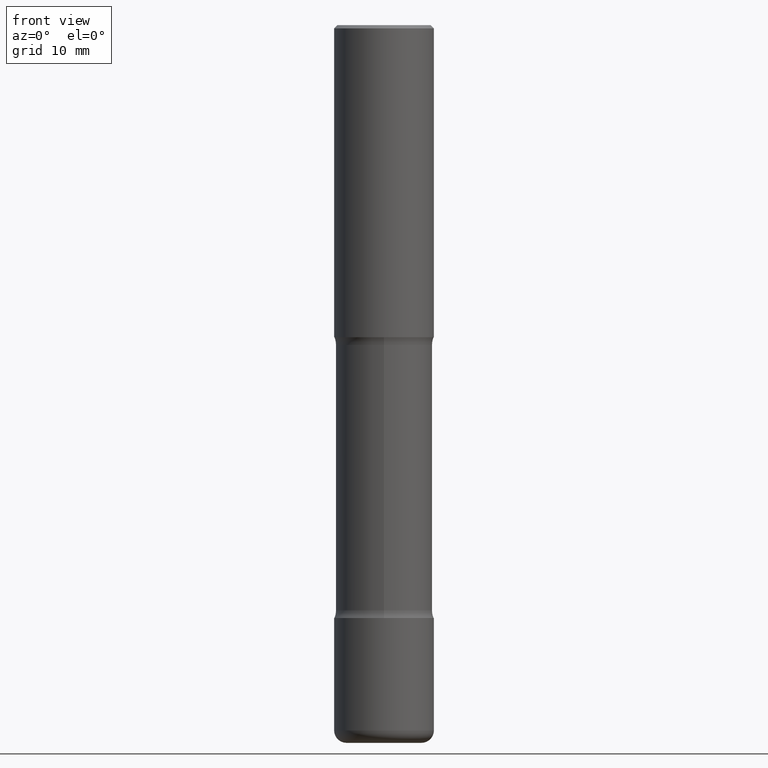
[diagram: clean part render]
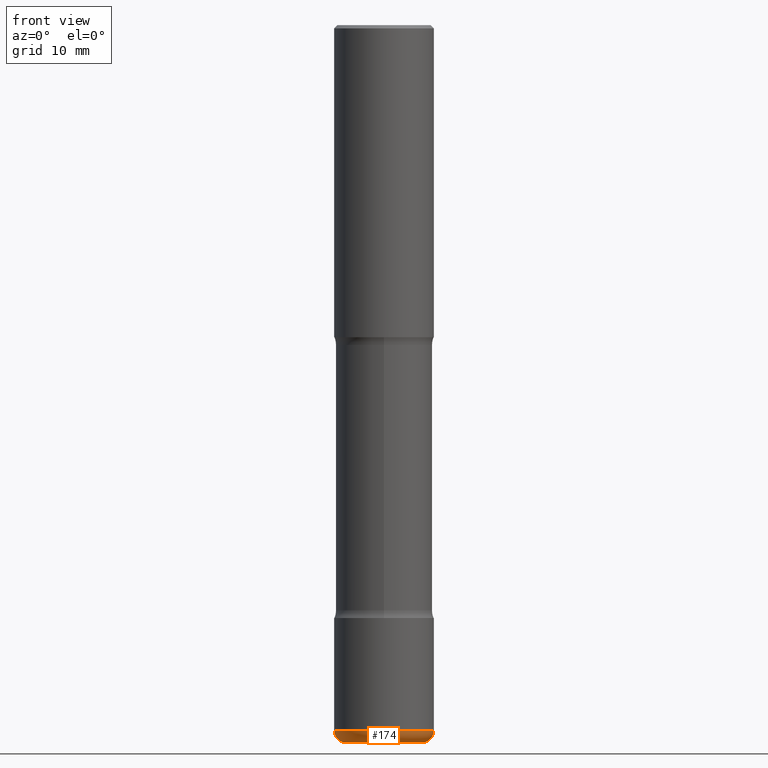
[diagram: same view with one face highlighted and labeled with its STEP entity id]
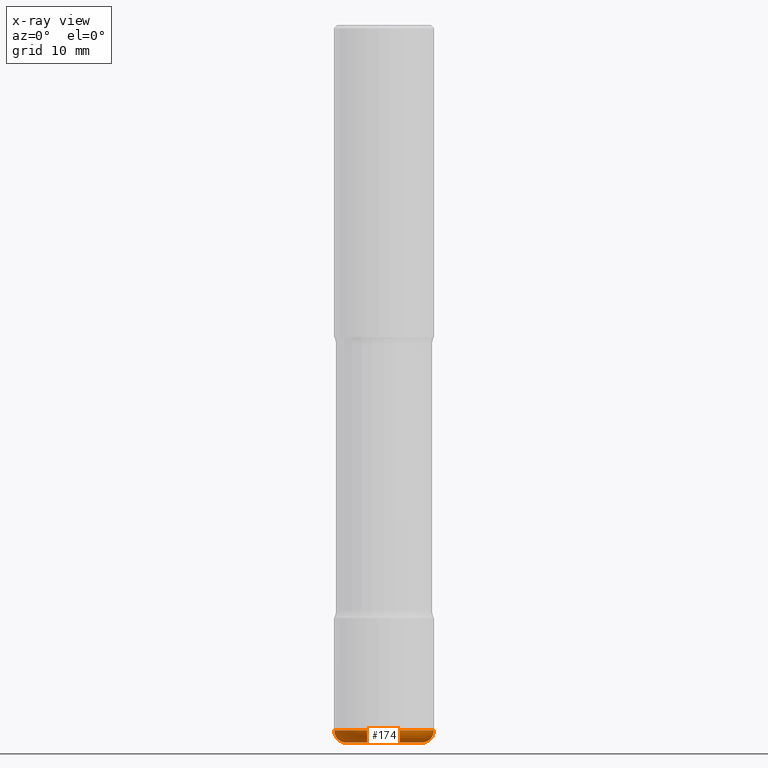
[diagram: x-ray of the same camera — body ghosted, the highlighted face saturated]
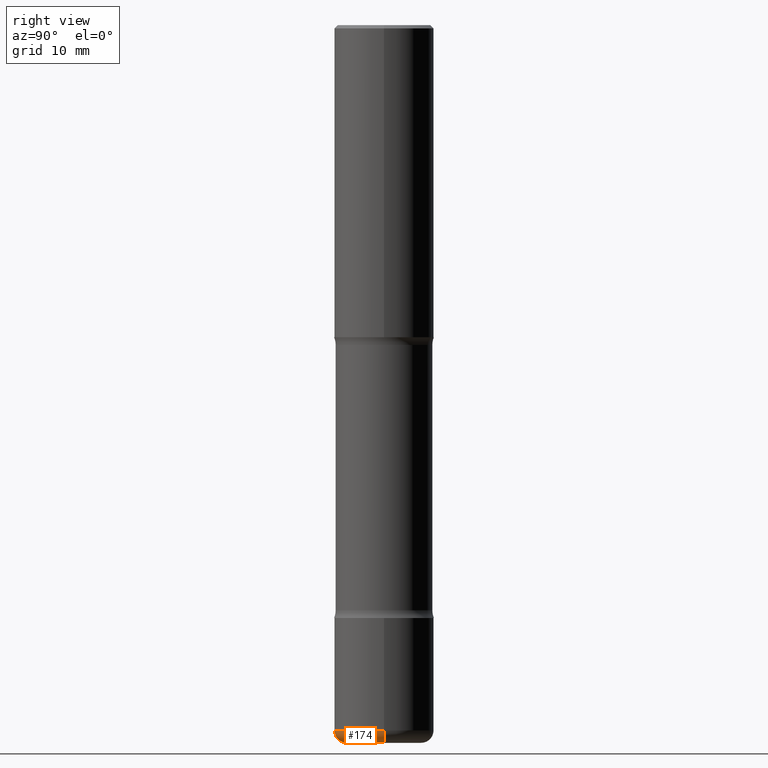
[diagram: same view with one face highlighted and labeled with its STEP entity id]
A machine part, front view. The second image highlights one B-rep face of the part: STEP entity #174.
The next image is the same camera in x-ray: the body ghosted, the highlighted face saturated — about 0% of this face is hidden behind the body in this view.
A second angle (right view) of the same face is appended — the face is thin or edge-on in the first view.
In plain terms, the highlighted toroidal blend (fillet) surface has major radius 6.0008 mm and minor (blend) radius 1.999 mm.
Its self-contained STEP definition (entity closure, byte-faithful):
#1 = CARTESIAN_POINT ( 'NONE',  ( 1.087964617183705593E-28, -1.553325132837927055E-14, -4.448900000000000077 ) ) ;
#36 = ORIENTED_EDGE ( 'NONE', *, *, #113, .T. ) ;
#43 = CARTESIAN_POINT ( 'NONE',  ( 0.3149500000000003963, -1.773253542371656516E-14, -4.448900000000000077 ) ) ;
#49 = DIRECTION ( 'NONE',  ( 1.000000000000000000, -6.982962677686268288E-15, 0.000000000000000000 ) ) ;
#52 = VERTEX_POINT ( 'NONE', #43 ) ;
#59 = CARTESIAN_POINT ( 'NONE',  ( -0.3149500000000003963, -1.329539698210283299E-14, -4.448900000000000077 ) ) ;
#68 = DIRECTION ( 'NONE',  ( -1.000000000000000000, 7.105427357600995548E-15, 0.000000000000000000 ) ) ;
#74 = CIRCLE ( 'NONE', #397, 0.07870000000000024198 ) ;
#78 = DIRECTION ( 'NONE',  ( -2.445468806185136597E-29, 3.491481338843145583E-15, 1.000000000000000000 ) ) ;
#95 = EDGE_CURVE ( 'NONE', #187, #429, #74, .T. ) ;
#101 = CIRCLE ( 'NONE', #473, 0.07870000000000024198 ) ;
#113 = EDGE_CURVE ( 'NONE', #507, #52, #101, .T. ) ;
#118 = ORIENTED_EDGE ( 'NONE', *, *, #95, .F. ) ;
#130 = AXIS2_PLACEMENT_3D ( 'NONE', #1, #475, #49 ) ;
#134 = CARTESIAN_POINT ( 'NONE',  ( -0.2362500000000003209, -1.385459411514603336E-14, -4.448900000000000077 ) ) ;
#139 = DIRECTION ( 'NONE',  ( 1.000000000000000000, -6.982962677686263555E-15, 4.883557194083111780E-29 ) ) ;
#158 = CARTESIAN_POINT ( 'NONE',  ( 1.107210456688382522E-28, -1.580803090974622705E-14, -4.527600000000000513 ) ) ;
#174 = ADVANCED_FACE ( 'NONE', ( #540 ), #442, .T. ) ;
#187 = VERTEX_POINT ( 'NONE', #330 ) ;
#203 = DIRECTION ( 'NONE',  ( 1.000000000000000000, -6.982962677686268288E-15, 0.000000000000000000 ) ) ;
#238 = CIRCLE ( 'NONE', #313, 0.2362500000000003209 ) ;
#245 = EDGE_LOOP ( 'NONE', ( #118, #310, #36, #295 ) ) ;
#272 = CARTESIAN_POINT ( 'NONE',  ( 1.087964617183705593E-28, -1.553325132837927055E-14, -4.448900000000000077 ) ) ;
#295 = ORIENTED_EDGE ( 'NONE', *, *, #371, .F. ) ;
#310 = ORIENTED_EDGE ( 'NONE', *, *, #316, .T. ) ;
#313 = AXIS2_PLACEMENT_3D ( 'NONE', #158, #78, #203 ) ;
#316 = EDGE_CURVE ( 'NONE', #187, #507, #238, .T. ) ;
#330 = CARTESIAN_POINT ( 'NONE',  ( -0.2362500000000003209, -1.371238533930791063E-14, -4.527600000000000513 ) ) ;
#371 = EDGE_CURVE ( 'NONE', #429, #52, #443, .T. ) ;
#383 = AXIS2_PLACEMENT_3D ( 'NONE', #272, #417, #139 ) ;
#397 = AXIS2_PLACEMENT_3D ( 'NONE', #134, #399, #68 ) ;
#399 = DIRECTION ( 'NONE',  ( 7.105427357601001859E-15, 1.000000000000000000, -3.491481338843145583E-15 ) ) ;
#417 = DIRECTION ( 'NONE',  ( -2.445468806185136597E-29, 3.491481338843145583E-15, 1.000000000000000000 ) ) ;
#422 = DIRECTION ( 'NONE',  ( 1.000000000000000000, -6.982962677686248567E-15, 0.000000000000000000 ) ) ;
#429 = VERTEX_POINT ( 'NONE', #59 ) ;
#442 = TOROIDAL_SURFACE ( 'NONE', #383, 0.2362500000000003209, 0.07870000000000024198 ) ;
#443 = CIRCLE ( 'NONE', #130, 0.3149500000000003408 ) ;
#473 = AXIS2_PLACEMENT_3D ( 'NONE', #499, #552, #422 ) ;
#475 = DIRECTION ( 'NONE',  ( -2.445468806185136597E-29, 3.491481338843145583E-15, 1.000000000000000000 ) ) ;
#487 = CARTESIAN_POINT ( 'NONE',  ( 0.2362500000000003209, -1.745775584234961182E-14, -4.527600000000000513 ) ) ;
#499 = CARTESIAN_POINT ( 'NONE',  ( 0.2362500000000003209, -1.718297626098265532E-14, -4.448900000000000077 ) ) ;
#507 = VERTEX_POINT ( 'NONE', #487 ) ;
#540 = FACE_OUTER_BOUND ( 'NONE', #245, .T. ) ;
#552 = DIRECTION ( 'NONE',  ( -6.982962677686266711E-15, -1.000000000000000000, 3.491481338843145583E-15 ) ) ;